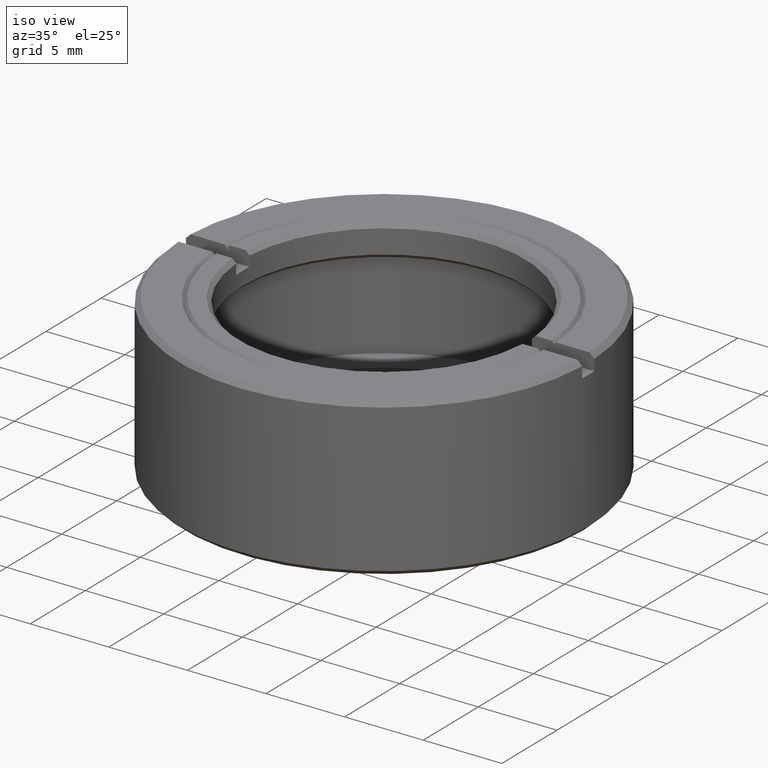
[diagram: clean part render]
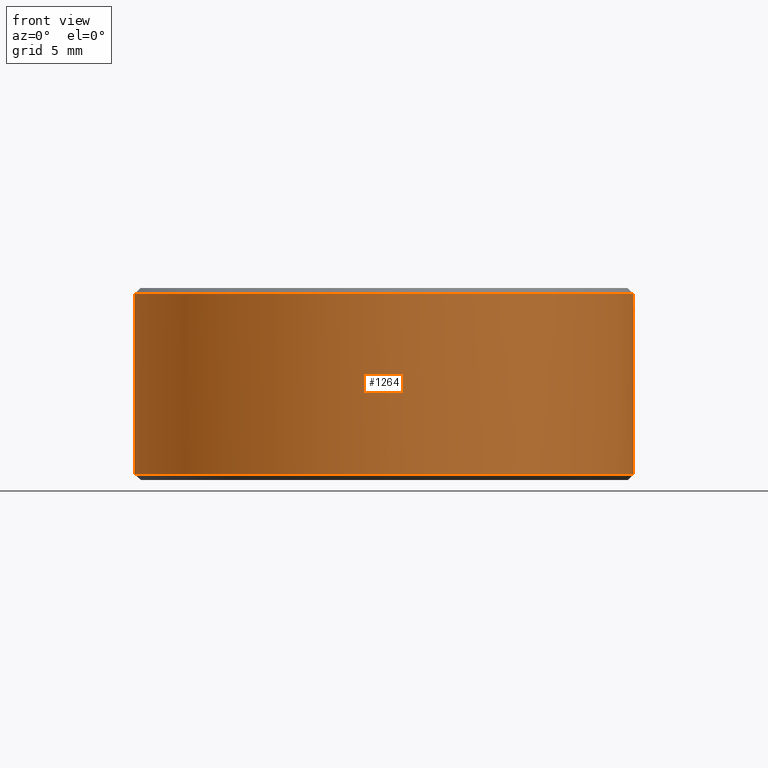
[diagram: tour spotlight — one face highlighted and labeled with its STEP entity id]
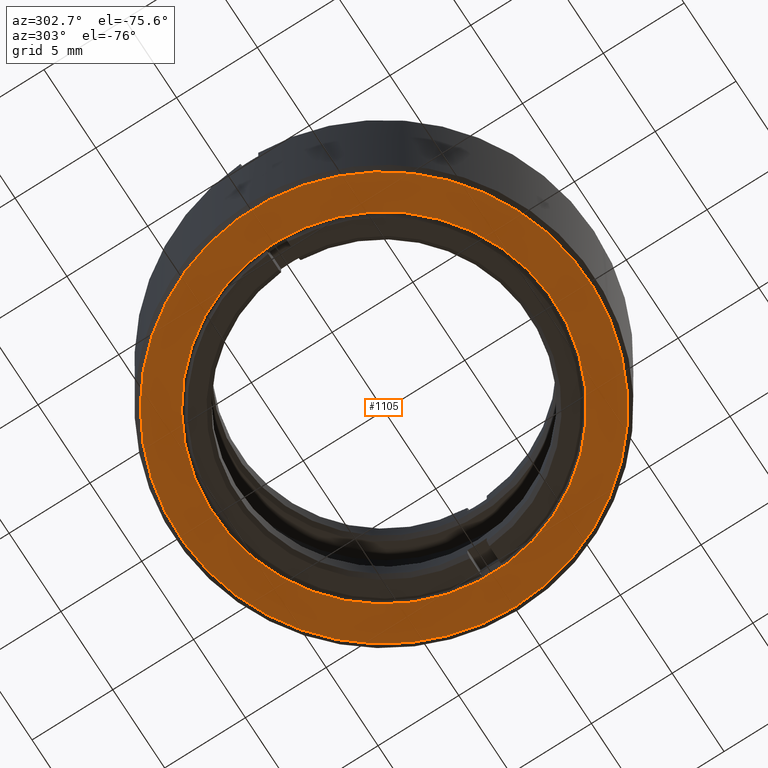
[diagram: tour spotlight — one face highlighted and labeled with its STEP entity id]
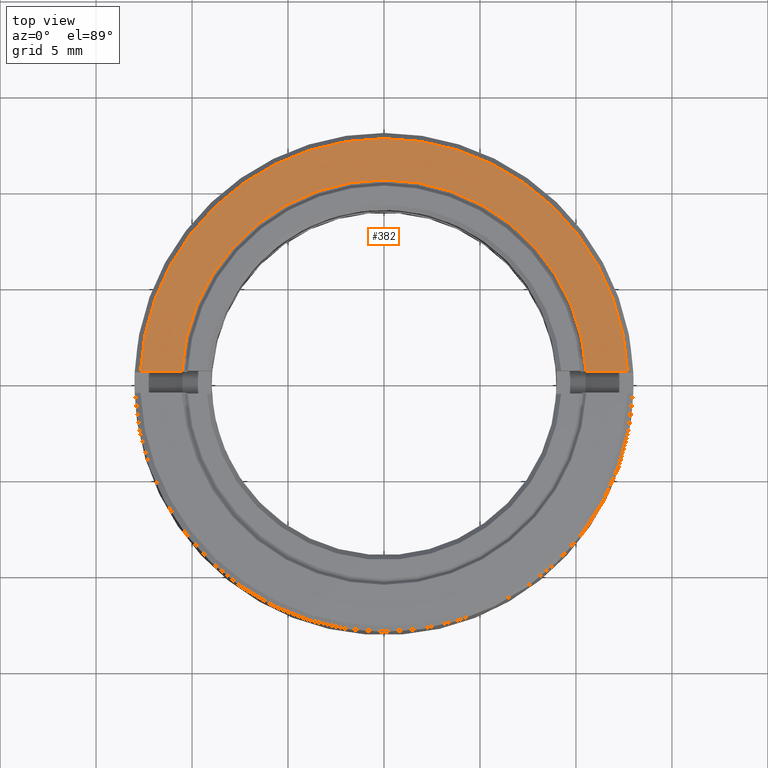
[diagram: tour spotlight — one face highlighted and labeled with its STEP entity id]
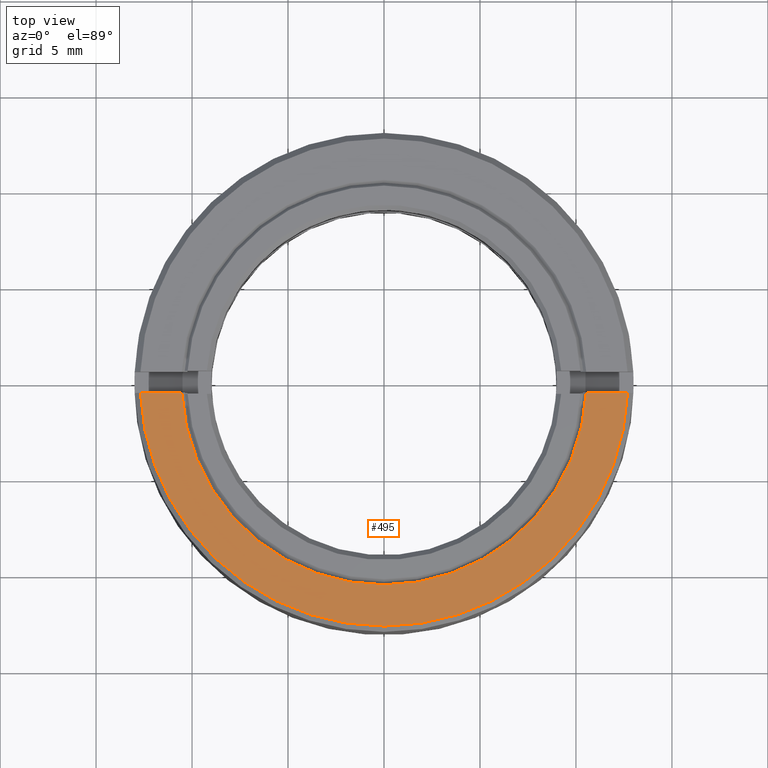
[diagram: tour spotlight — one face highlighted and labeled with its STEP entity id]
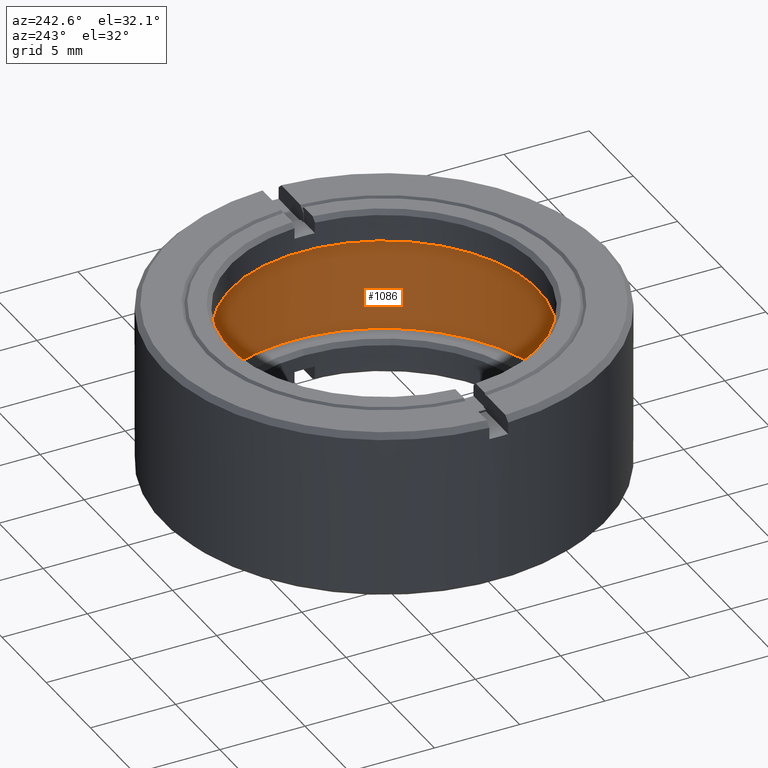
[diagram: tour spotlight — one face highlighted and labeled with its STEP entity id]
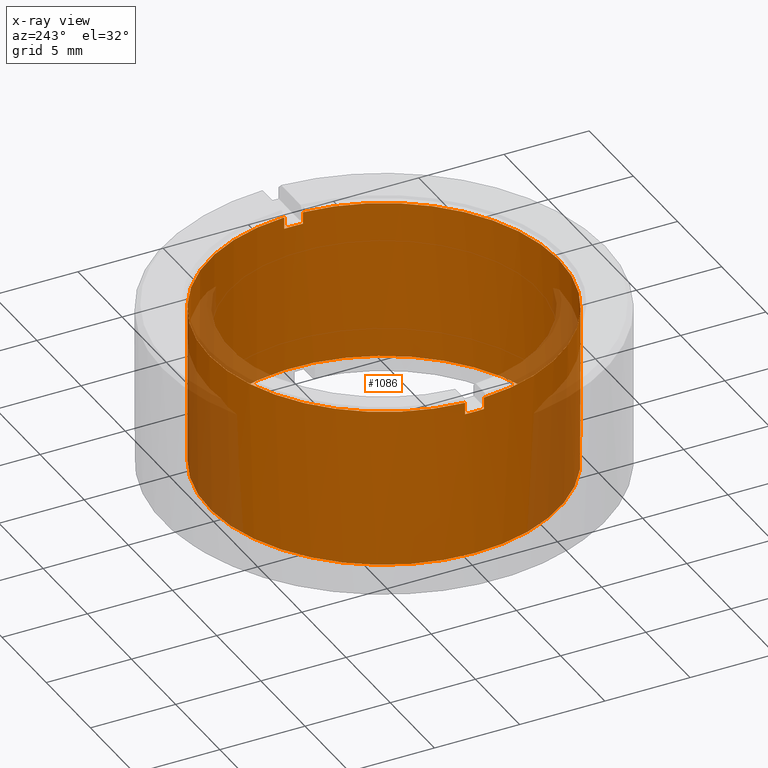
[diagram: x-ray of the same camera — body ghosted, this tour face saturated]
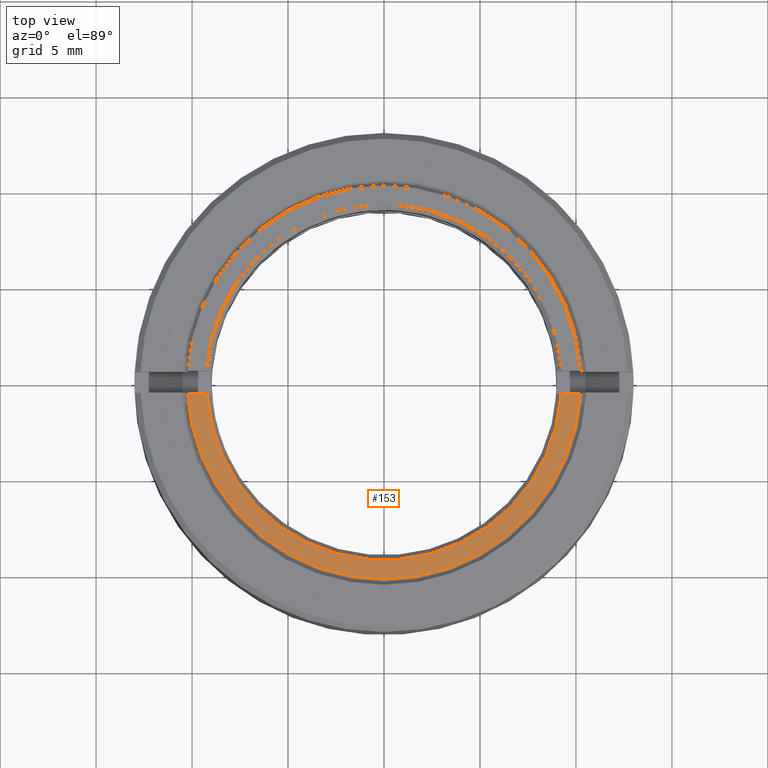
[diagram: tour spotlight — one face highlighted and labeled with its STEP entity id]
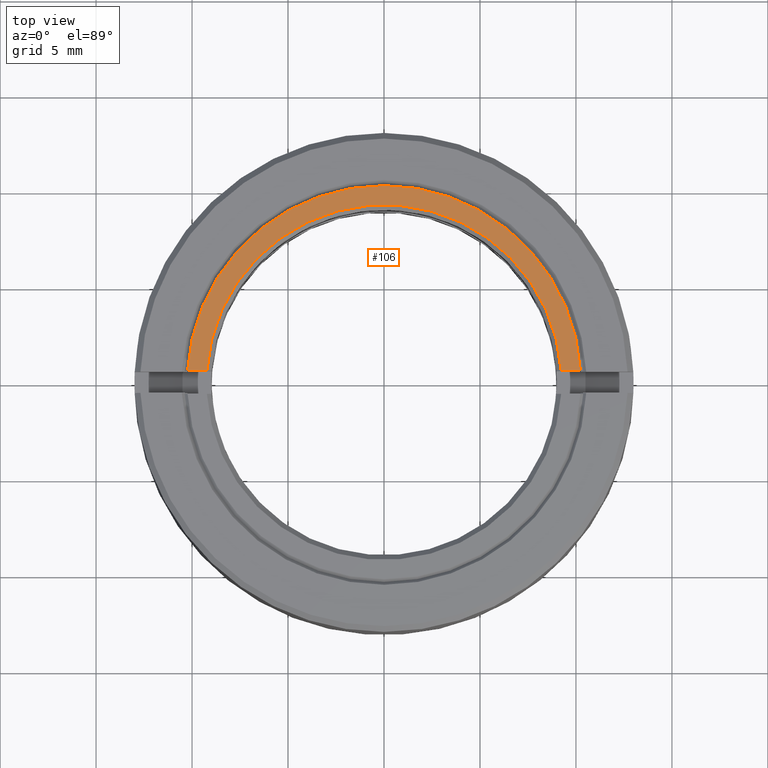
[diagram: tour spotlight — one face highlighted and labeled with its STEP entity id]
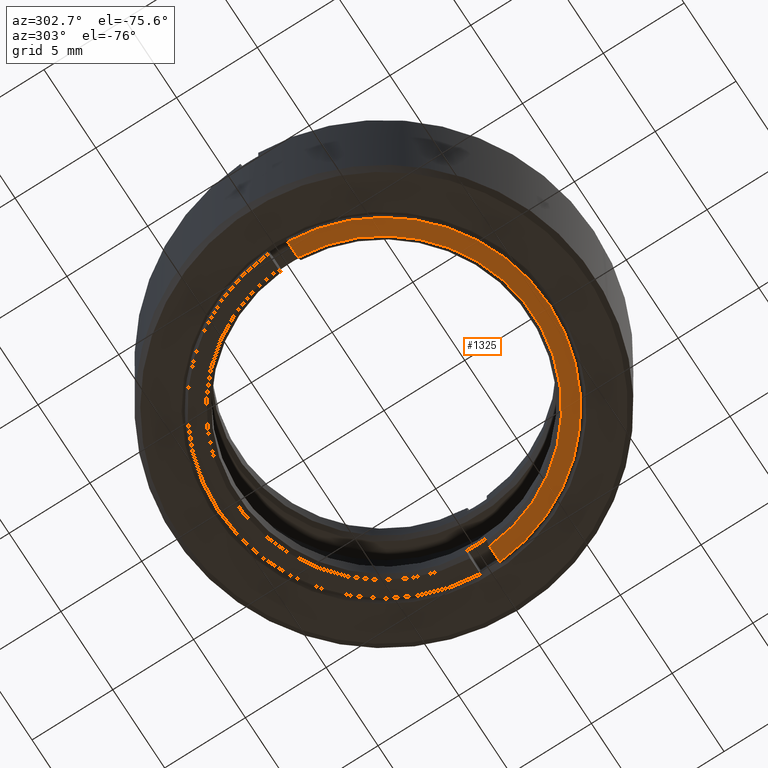
[diagram: tour spotlight — one face highlighted and labeled with its STEP entity id]
A machine part: a face-by-face anatomy tour. The part has 51 B-rep faces; the first image is the clean iso view, then the 8 largest visible faces are spotlighted one at a time (largest first), each with its STEP entity span.

Face 1 — front view, entity #1264. In plain terms, the highlighted cylindrical surface (bore or boss wall) has radius 13 mm, axis along (-0, -0, -1).
Definition (entity closure, byte-faithful):
#47 = EDGE_CURVE ( 'NONE', #1429, #1429, #965, .T. ) ;
#60 = VERTEX_POINT ( 'NONE', #861 ) ;
#65 = AXIS2_PLACEMENT_3D ( 'NONE', #281, #1530, #1143 ) ;
#82 = VERTEX_POINT ( 'NONE', #359 ) ;
#162 = VERTEX_POINT ( 'NONE', #1006 ) ;
#169 = CARTESIAN_POINT ( 'NONE',  ( 12.98836017363239037, 0.5500000000000000444, 4.000000000000000000 ) ) ;
#180 = VERTEX_POINT ( 'NONE', #169 ) ;
#231 = DIRECTION ( 'NONE',  ( 0.000000000000000000, 0.000000000000000000, 1.000000000000000000 ) ) ;
#270 = VECTOR ( 'NONE', #1326, 1000.000000000000000 ) ;
#275 = ORIENTED_EDGE ( 'NONE', *, *, #1002, .T. ) ;
#281 = CARTESIAN_POINT ( 'NONE',  ( 0.000000000000000000, 0.000000000000000000, 4.699999999999987743 ) ) ;
#320 = CARTESIAN_POINT ( 'NONE',  ( -12.98836017363239037, 0.5500000000000000444, 4.000000000000000000 ) ) ;
#346 = LINE ( 'NONE', #320, #1147 ) ;
#359 = CARTESIAN_POINT ( 'NONE',  ( -12.98836017363239037, 0.5500000000000000444, 4.699999999999988631 ) ) ;
#369 = CARTESIAN_POINT ( 'NONE',  ( 12.98836017363239037, -0.5500000000000000444, 4.000000000000000000 ) ) ;
#404 = AXIS2_PLACEMENT_3D ( 'NONE', #1527, #657, #411 ) ;
#411 = DIRECTION ( 'NONE',  ( -1.000000000000000000, 0.000000000000000000, 0.000000000000000000 ) ) ;
#447 = EDGE_CURVE ( 'NONE', #60, #162, #528, .T. ) ;
#459 = VECTOR ( 'NONE', #1548, 1000.000000000000000 ) ;
#466 = VERTEX_POINT ( 'NONE', #600 ) ;
#477 = AXIS2_PLACEMENT_3D ( 'NONE', #497, #231, #827 ) ;
#497 = CARTESIAN_POINT ( 'NONE',  ( 0.000000000000000000, 0.000000000000000000, -4.700000000000000178 ) ) ;
#528 = CIRCLE ( 'NONE', #1144, 13.00000000000000355 ) ;
#535 = VECTOR ( 'NONE', #1298, 1000.000000000000000 ) ;
#549 = CARTESIAN_POINT ( 'NONE',  ( 0.000000000000000000, 0.000000000000000000, 4.000000000000000000 ) ) ;
#552 = ORIENTED_EDGE ( 'NONE', *, *, #1294, .T. ) ;
#583 = LINE ( 'NONE', #1071, #270 ) ;
#600 = CARTESIAN_POINT ( 'NONE',  ( -12.98836017363239037, -0.5500000000000000444, 4.699999999999988631 ) ) ;
#609 = CIRCLE ( 'NONE', #404, 13.00000000000000355 ) ;
#623 = ORIENTED_EDGE ( 'NONE', *, *, #1252, .F. ) ;
#657 = DIRECTION ( 'NONE',  ( -0.000000000000000000, -0.000000000000000000, -1.000000000000000000 ) ) ;
#687 = VERTEX_POINT ( 'NONE', #1083 ) ;
#719 = ORIENTED_EDGE ( 'NONE', *, *, #1202, .T. ) ;
#739 = EDGE_LOOP ( 'NONE', ( #1611 ) ) ;
#786 = CIRCLE ( 'NONE', #1201, 13.00000000000000355 ) ;
#826 = CARTESIAN_POINT ( 'NONE',  ( 0.000000000000000000, 0.000000000000000000, 4.000000000000000000 ) ) ;
#827 = DIRECTION ( 'NONE',  ( -1.000000000000000000, 0.000000000000000000, 0.000000000000000000 ) ) ;
#847 = VERTEX_POINT ( 'NONE', #369 ) ;
#861 = CARTESIAN_POINT ( 'NONE',  ( -12.98836017363239037, 0.5500000000000000444, 4.000000000000000000 ) ) ;
#926 = DIRECTION ( 'NONE',  ( -0.000000000000000000, -0.000000000000000000, -1.000000000000000000 ) ) ;
#930 = CARTESIAN_POINT ( 'NONE',  ( 12.98836017363239037, 0.5500000000000000444, 4.000000000000000000 ) ) ;
#933 = FACE_OUTER_BOUND ( 'NONE', #1368, .T. ) ;
#941 = CIRCLE ( 'NONE', #65, 13.00000000000000355 ) ;
#959 = DIRECTION ( 'NONE',  ( -1.000000000000000000, 0.000000000000000000, 0.000000000000000000 ) ) ;
#965 = CIRCLE ( 'NONE', #477, 13.00000000000000355 ) ;
#1002 = EDGE_CURVE ( 'NONE', #82, #1195, #609, .T. ) ;
#1006 = CARTESIAN_POINT ( 'NONE',  ( -12.98836017363239037, -0.5500000000000000444, 4.000000000000000000 ) ) ;
#1035 = CARTESIAN_POINT ( 'NONE',  ( 12.98836017363239037, 0.5500000000000000444, 4.699999999999988631 ) ) ;
#1050 = LINE ( 'NONE', #1551, #459 ) ;
#1065 = CARTESIAN_POINT ( 'NONE',  ( -13.00000000000000355, 0.000000000000000000, -4.700000000000000178 ) ) ;
#1071 = CARTESIAN_POINT ( 'NONE',  ( -12.98836017363239037, -0.5500000000000000444, 4.000000000000000000 ) ) ;
#1083 = CARTESIAN_POINT ( 'NONE',  ( 12.98836017363239037, -0.5500000000000000444, 4.699999999999988631 ) ) ;
#1136 = EDGE_CURVE ( 'NONE', #847, #687, #1050, .T. ) ;
#1143 = DIRECTION ( 'NONE',  ( -1.000000000000000000, 0.000000000000000000, 0.000000000000000000 ) ) ;
#1144 = AXIS2_PLACEMENT_3D ( 'NONE', #826, #1358, #1349 ) ;
#1147 = VECTOR ( 'NONE', #1442, 1000.000000000000000 ) ;
#1176 = DIRECTION ( 'NONE',  ( 0.000000000000000000, 0.000000000000000000, 1.000000000000000000 ) ) ;
#1188 = LINE ( 'NONE', #930, #535 ) ;
#1195 = VERTEX_POINT ( 'NONE', #1035 ) ;
#1201 = AXIS2_PLACEMENT_3D ( 'NONE', #549, #1176, #1336 ) ;
#1202 = EDGE_CURVE ( 'NONE', #687, #466, #941, .T. ) ;
#1204 = FACE_OUTER_BOUND ( 'NONE', #739, .T. ) ;
#1252 = EDGE_CURVE ( 'NONE', #847, #180, #786, .T. ) ;
#1264 = ADVANCED_FACE ( 'NONE', ( #1204, #933 ), #1564, .T. ) ;
#1294 = EDGE_CURVE ( 'NONE', #60, #82, #346, .T. ) ;
#1298 = DIRECTION ( 'NONE',  ( -0.000000000000000000, 0.000000000000000000, -1.000000000000000000 ) ) ;
#1326 = DIRECTION ( 'NONE',  ( 0.000000000000000000, -0.000000000000000000, -1.000000000000000000 ) ) ;
#1336 = DIRECTION ( 'NONE',  ( -1.000000000000000000, 1.687538997430237941E-14, 0.000000000000000000 ) ) ;
#1349 = DIRECTION ( 'NONE',  ( -1.000000000000000000, 0.000000000000000000, 0.000000000000000000 ) ) ;
#1350 = EDGE_CURVE ( 'NONE', #466, #162, #583, .T. ) ;
#1358 = DIRECTION ( 'NONE',  ( 0.000000000000000000, 0.000000000000000000, 1.000000000000000000 ) ) ;
#1368 = EDGE_LOOP ( 'NONE', ( #275, #1409, #623, #1462, #719, #1424, #1541, #552 ) ) ;
#1409 = ORIENTED_EDGE ( 'NONE', *, *, #1553, .T. ) ;
#1424 = ORIENTED_EDGE ( 'NONE', *, *, #1350, .T. ) ;
#1429 = VERTEX_POINT ( 'NONE', #1065 ) ;
#1442 = DIRECTION ( 'NONE',  ( 0.000000000000000000, -0.000000000000000000, 1.000000000000000000 ) ) ;
#1462 = ORIENTED_EDGE ( 'NONE', *, *, #1136, .T. ) ;
#1468 = AXIS2_PLACEMENT_3D ( 'NONE', #1589, #926, #959 ) ;
#1527 = CARTESIAN_POINT ( 'NONE',  ( 0.000000000000000000, 0.000000000000000000, 4.699999999999987743 ) ) ;
#1530 = DIRECTION ( 'NONE',  ( -0.000000000000000000, -0.000000000000000000, -1.000000000000000000 ) ) ;
#1541 = ORIENTED_EDGE ( 'NONE', *, *, #447, .F. ) ;
#1548 = DIRECTION ( 'NONE',  ( -0.000000000000000000, 0.000000000000000000, 1.000000000000000000 ) ) ;
#1551 = CARTESIAN_POINT ( 'NONE',  ( 12.98836017363239037, -0.5500000000000000444, 4.000000000000000000 ) ) ;
#1553 = EDGE_CURVE ( 'NONE', #1195, #180, #1188, .T. ) ;
#1564 = CYLINDRICAL_SURFACE ( 'NONE', #1468, 13.00000000000000355 ) ;
#1589 = CARTESIAN_POINT ( 'NONE',  ( 0.000000000000000000, 0.000000000000000000, 5.000000000000000000 ) ) ;
#1611 = ORIENTED_EDGE ( 'NONE', *, *, #47, .T. ) ;

Face 2 — auxiliary view, entity #1105. In plain terms, the highlighted planar face has unit normal (0, 0, 1).
Definition (entity closure, byte-faithful):
#66 = EDGE_LOOP ( 'NONE', ( #472 ) ) ;
#84 = CARTESIAN_POINT ( 'NONE',  ( 0.000000000000000000, 0.000000000000000000, -4.999999999999998224 ) ) ;
#226 = CARTESIAN_POINT ( 'NONE',  ( -10.55000000000000604, 0.000000000000000000, -4.999999999999998224 ) ) ;
#325 = CIRCLE ( 'NONE', #356, 10.55000000000000604 ) ;
#356 = AXIS2_PLACEMENT_3D ( 'NONE', #84, #578, #1170 ) ;
#366 = VERTEX_POINT ( 'NONE', #1453 ) ;
#435 = FACE_BOUND ( 'NONE', #66, .T. ) ;
#444 = PLANE ( 'NONE',  #1018 ) ;
#472 = ORIENTED_EDGE ( 'NONE', *, *, #1584, .F. ) ;
#483 = CIRCLE ( 'NONE', #1386, 12.69999999999999929 ) ;
#578 = DIRECTION ( 'NONE',  ( 0.000000000000000000, 0.000000000000000000, -1.000000000000000000 ) ) ;
#594 = VERTEX_POINT ( 'NONE', #226 ) ;
#650 = DIRECTION ( 'NONE',  ( 1.000000000000000000, 0.000000000000000000, 0.000000000000000000 ) ) ;
#704 = ORIENTED_EDGE ( 'NONE', *, *, #1404, .F. ) ;
#750 = CARTESIAN_POINT ( 'NONE',  ( 0.000000000000000000, 0.000000000000000000, -5.000000000000000888 ) ) ;
#947 = FACE_OUTER_BOUND ( 'NONE', #1082, .T. ) ;
#1018 = AXIS2_PLACEMENT_3D ( 'NONE', #1179, #1542, #1446 ) ;
#1082 = EDGE_LOOP ( 'NONE', ( #704 ) ) ;
#1105 = ADVANCED_FACE ( 'NONE', ( #947, #435 ), #444, .F. ) ;
#1170 = DIRECTION ( 'NONE',  ( -1.000000000000000000, 0.000000000000000000, 0.000000000000000000 ) ) ;
#1179 = CARTESIAN_POINT ( 'NONE',  ( 0.000000000000000000, 0.000000000000000000, -5.000000000000000000 ) ) ;
#1278 = DIRECTION ( 'NONE',  ( 0.000000000000000000, -0.000000000000000000, 1.000000000000000000 ) ) ;
#1386 = AXIS2_PLACEMENT_3D ( 'NONE', #750, #1278, #650 ) ;
#1404 = EDGE_CURVE ( 'NONE', #366, #366, #483, .T. ) ;
#1446 = DIRECTION ( 'NONE',  ( 1.000000000000000000, 0.000000000000000000, -0.000000000000000000 ) ) ;
#1453 = CARTESIAN_POINT ( 'NONE',  ( 12.69999999999999929, 0.000000000000000000, -5.000000000000000888 ) ) ;
#1542 = DIRECTION ( 'NONE',  ( 0.000000000000000000, 0.000000000000000000, 1.000000000000000000 ) ) ;
#1584 = EDGE_CURVE ( 'NONE', #594, #594, #325, .T. ) ;

Face 3 — top view, entity #382. In plain terms, the highlighted planar face has unit normal (0, 0, 1).
Definition (entity closure, byte-faithful):
#10 = AXIS2_PLACEMENT_3D ( 'NONE', #341, #1576, #837 ) ;
#76 = DIRECTION ( 'NONE',  ( 0.000000000000000000, 0.000000000000000000, -1.000000000000000000 ) ) ;
#103 = EDGE_LOOP ( 'NONE', ( #972, #484, #1507, #452 ) ) ;
#135 = CARTESIAN_POINT ( 'NONE',  ( -12.68808496188450441, 0.5500000000000000444, 5.000000000000001776 ) ) ;
#137 = VERTEX_POINT ( 'NONE', #135 ) ;
#172 = DIRECTION ( 'NONE',  ( -1.000000000000000000, 0.000000000000000000, 0.000000000000000000 ) ) ;
#196 = CARTESIAN_POINT ( 'NONE',  ( 10.53565375285273831, 0.5500000000000000444, 5.000000000000000888 ) ) ;
#292 = EDGE_CURVE ( 'NONE', #137, #1526, #1321, .T. ) ;
#341 = CARTESIAN_POINT ( 'NONE',  ( 0.000000000000000000, 0.000000000000000000, 5.000000000000000000 ) ) ;
#350 = VECTOR ( 'NONE', #425, 1000.000000000000000 ) ;
#382 = ADVANCED_FACE ( 'NONE', ( #952 ), #1583, .T. ) ;
#418 = CARTESIAN_POINT ( 'NONE',  ( 0.000000000000000000, 0.5500000000000000444, 5.000000000000000000 ) ) ;
#425 = DIRECTION ( 'NONE',  ( 1.000000000000000000, 0.000000000000000000, -0.000000000000000000 ) ) ;
#440 = CARTESIAN_POINT ( 'NONE',  ( 0.000000000000000000, 0.000000000000000000, 5.000000000000002665 ) ) ;
#452 = ORIENTED_EDGE ( 'NONE', *, *, #1586, .F. ) ;
#484 = ORIENTED_EDGE ( 'NONE', *, *, #1157, .T. ) ;
#645 = DIRECTION ( 'NONE',  ( 1.000000000000000000, 0.000000000000000000, 0.000000000000000000 ) ) ;
#833 = VECTOR ( 'NONE', #945, 1000.000000000000000 ) ;
#837 = DIRECTION ( 'NONE',  ( 1.000000000000000000, 0.000000000000000000, -0.000000000000000000 ) ) ;
#912 = LINE ( 'NONE', #418, #350 ) ;
#919 = DIRECTION ( 'NONE',  ( -0.000000000000000000, 0.000000000000000000, -1.000000000000000000 ) ) ;
#932 = EDGE_CURVE ( 'NONE', #1103, #1026, #912, .T. ) ;
#945 = DIRECTION ( 'NONE',  ( 1.000000000000000000, 0.000000000000000000, -0.000000000000000000 ) ) ;
#952 = FACE_OUTER_BOUND ( 'NONE', #103, .T. ) ;
#972 = ORIENTED_EDGE ( 'NONE', *, *, #292, .T. ) ;
#1026 = VERTEX_POINT ( 'NONE', #1276 ) ;
#1061 = CARTESIAN_POINT ( 'NONE',  ( 0.000000000000000000, 0.5500000000000000444, 5.000000000000000000 ) ) ;
#1103 = VERTEX_POINT ( 'NONE', #196 ) ;
#1157 = EDGE_CURVE ( 'NONE', #1526, #1103, #1599, .T. ) ;
#1258 = CIRCLE ( 'NONE', #1573, 12.69999999999998863 ) ;
#1276 = CARTESIAN_POINT ( 'NONE',  ( 12.68808496188450441, 0.5500000000000000444, 5.000000000000002665 ) ) ;
#1321 = LINE ( 'NONE', #1061, #833 ) ;
#1392 = CARTESIAN_POINT ( 'NONE',  ( -10.53565375285274008, 0.5500000000000000444, 5.000000000000002665 ) ) ;
#1413 = AXIS2_PLACEMENT_3D ( 'NONE', #440, #919, #645 ) ;
#1417 = CARTESIAN_POINT ( 'NONE',  ( 0.000000000000000000, 0.000000000000000000, 5.000000000000001776 ) ) ;
#1507 = ORIENTED_EDGE ( 'NONE', *, *, #932, .T. ) ;
#1526 = VERTEX_POINT ( 'NONE', #1392 ) ;
#1573 = AXIS2_PLACEMENT_3D ( 'NONE', #1417, #76, #172 ) ;
#1576 = DIRECTION ( 'NONE',  ( 0.000000000000000000, 0.000000000000000000, 1.000000000000000000 ) ) ;
#1583 = PLANE ( 'NONE',  #10 ) ;
#1586 = EDGE_CURVE ( 'NONE', #137, #1026, #1258, .T. ) ;
#1599 = CIRCLE ( 'NONE', #1413, 10.55000000000000071 ) ;

Face 4 — top view, entity #495. In plain terms, the highlighted planar face has unit normal (0, 0, 1).
Definition (entity closure, byte-faithful):
#42 = CARTESIAN_POINT ( 'NONE',  ( 0.000000000000000000, -0.5500000000000000444, 5.000000000000000000 ) ) ;
#101 = ORIENTED_EDGE ( 'NONE', *, *, #771, .T. ) ;
#146 = EDGE_CURVE ( 'NONE', #921, #694, #1168, .T. ) ;
#203 = EDGE_CURVE ( 'NONE', #694, #391, #884, .T. ) ;
#276 = DIRECTION ( 'NONE',  ( 0.000000000000000000, 0.000000000000000000, -1.000000000000000000 ) ) ;
#330 = ORIENTED_EDGE ( 'NONE', *, *, #146, .T. ) ;
#381 = DIRECTION ( 'NONE',  ( -0.000000000000000000, 0.000000000000000000, -1.000000000000000000 ) ) ;
#391 = VERTEX_POINT ( 'NONE', #845 ) ;
#400 = CARTESIAN_POINT ( 'NONE',  ( 0.000000000000000000, 0.000000000000000000, 5.000000000000001776 ) ) ;
#465 = FACE_OUTER_BOUND ( 'NONE', #887, .T. ) ;
#489 = PLANE ( 'NONE',  #558 ) ;
#495 = ADVANCED_FACE ( 'NONE', ( #465 ), #489, .T. ) ;
#531 = VECTOR ( 'NONE', #867, 1000.000000000000000 ) ;
#558 = AXIS2_PLACEMENT_3D ( 'NONE', #975, #1477, #925 ) ;
#614 = LINE ( 'NONE', #1216, #531 ) ;
#654 = DIRECTION ( 'NONE',  ( 1.000000000000000000, 0.000000000000000000, 0.000000000000000000 ) ) ;
#694 = VERTEX_POINT ( 'NONE', #1588 ) ;
#771 = EDGE_CURVE ( 'NONE', #931, #921, #614, .T. ) ;
#845 = CARTESIAN_POINT ( 'NONE',  ( -12.68808496188450441, -0.5500000000000000444, 5.000000000000002665 ) ) ;
#862 = AXIS2_PLACEMENT_3D ( 'NONE', #400, #276, #1268 ) ;
#867 = DIRECTION ( 'NONE',  ( -1.000000000000000000, -0.000000000000000000, 0.000000000000000000 ) ) ;
#884 = LINE ( 'NONE', #42, #1567 ) ;
#887 = EDGE_LOOP ( 'NONE', ( #101, #330, #1596, #1011 ) ) ;
#896 = CARTESIAN_POINT ( 'NONE',  ( 0.000000000000000000, 0.000000000000000000, 5.000000000000000888 ) ) ;
#921 = VERTEX_POINT ( 'NONE', #1041 ) ;
#925 = DIRECTION ( 'NONE',  ( 1.000000000000000000, 0.000000000000000000, -0.000000000000000000 ) ) ;
#931 = VERTEX_POINT ( 'NONE', #1260 ) ;
#974 = EDGE_CURVE ( 'NONE', #931, #391, #1094, .T. ) ;
#975 = CARTESIAN_POINT ( 'NONE',  ( 0.000000000000000000, 0.000000000000000000, 5.000000000000000000 ) ) ;
#1011 = ORIENTED_EDGE ( 'NONE', *, *, #974, .F. ) ;
#1041 = CARTESIAN_POINT ( 'NONE',  ( 10.53565375285273831, -0.5500000000000000444, 5.000000000000000888 ) ) ;
#1094 = CIRCLE ( 'NONE', #862, 12.69999999999998863 ) ;
#1168 = CIRCLE ( 'NONE', #1225, 10.54999999999999893 ) ;
#1216 = CARTESIAN_POINT ( 'NONE',  ( 0.000000000000000000, -0.5500000000000000444, 5.000000000000000000 ) ) ;
#1225 = AXIS2_PLACEMENT_3D ( 'NONE', #896, #381, #654 ) ;
#1260 = CARTESIAN_POINT ( 'NONE',  ( 12.68808496188450441, -0.5500000000000000444, 5.000000000000001776 ) ) ;
#1268 = DIRECTION ( 'NONE',  ( -1.000000000000000000, 0.000000000000000000, 0.000000000000000000 ) ) ;
#1477 = DIRECTION ( 'NONE',  ( 0.000000000000000000, 0.000000000000000000, 1.000000000000000000 ) ) ;
#1525 = DIRECTION ( 'NONE',  ( -1.000000000000000000, -0.000000000000000000, 0.000000000000000000 ) ) ;
#1567 = VECTOR ( 'NONE', #1525, 1000.000000000000000 ) ;
#1588 = CARTESIAN_POINT ( 'NONE',  ( -10.53565375285273831, -0.5500000000000000444, 5.000000000000000888 ) ) ;
#1596 = ORIENTED_EDGE ( 'NONE', *, *, #203, .T. ) ;

Face 5 — auxiliary view, entity #1086. An x-ray twin of the same camera follows (body ghosted, this face saturated) — the face is partly hidden behind the body. In plain terms, the highlighted cylindrical surface (bore or boss wall) has radius 10.25 mm, axis along (-0, -0, 1).
Definition (entity closure, byte-faithful):
#8 = DIRECTION ( 'NONE',  ( -0.000000000000000000, -0.000000000000000000, -1.000000000000000000 ) ) ;
#21 = DIRECTION ( 'NONE',  ( 0.000000000000000000, 0.000000000000000000, -1.000000000000000000 ) ) ;
#26 = VERTEX_POINT ( 'NONE', #1085 ) ;
#40 = AXIS2_PLACEMENT_3D ( 'NONE', #1348, #8, #486 ) ;
#41 = LINE ( 'NONE', #1024, #120 ) ;
#46 = CARTESIAN_POINT ( 'NONE',  ( 0.000000000000000000, 0.000000000000000000, 4.000000000000000888 ) ) ;
#59 = DIRECTION ( 'NONE',  ( 0.000000000000000000, 0.000000000000000000, 1.000000000000000000 ) ) ;
#83 = FACE_OUTER_BOUND ( 'NONE', #1223, .T. ) ;
#100 = CARTESIAN_POINT ( 'NONE',  ( 10.23523326553919155, 0.5500000000000000444, 4.000000000000000000 ) ) ;
#102 = VERTEX_POINT ( 'NONE', #1397 ) ;
#120 = VECTOR ( 'NONE', #430, 1000.000000000000000 ) ;
#145 = CIRCLE ( 'NONE', #1175, 10.25000000000000000 ) ;
#199 = CARTESIAN_POINT ( 'NONE',  ( 0.000000000000000000, 0.000000000000000000, 4.700000000000003730 ) ) ;
#217 = CIRCLE ( 'NONE', #1068, 10.25000000000000000 ) ;
#267 = CIRCLE ( 'NONE', #1067, 10.25000000000000000 ) ;
#304 = ORIENTED_EDGE ( 'NONE', *, *, #752, .T. ) ;
#316 = VERTEX_POINT ( 'NONE', #703 ) ;
#327 = DIRECTION ( 'NONE',  ( 1.000000000000000000, 0.000000000000000000, 0.000000000000000000 ) ) ;
#429 = CIRCLE ( 'NONE', #991, 10.25000000000000000 ) ;
#430 = DIRECTION ( 'NONE',  ( 0.000000000000000000, -0.000000000000000000, -1.000000000000000000 ) ) ;
#450 = CYLINDRICAL_SURFACE ( 'NONE', #890, 10.25000000000000000 ) ;
#453 = DIRECTION ( 'NONE',  ( 0.000000000000000000, 0.000000000000000000, -1.000000000000000000 ) ) ;
#462 = DIRECTION ( 'NONE',  ( -0.000000000000000000, -0.000000000000000000, 1.000000000000000000 ) ) ;
#485 = VERTEX_POINT ( 'NONE', #100 ) ;
#486 = DIRECTION ( 'NONE',  ( -1.000000000000000000, 0.000000000000000000, 0.000000000000000000 ) ) ;
#493 = CARTESIAN_POINT ( 'NONE',  ( -10.23523326553918977, -0.5500000000000000444, 4.000000000000000000 ) ) ;
#500 = EDGE_CURVE ( 'NONE', #1279, #564, #267, .T. ) ;
#539 = ORIENTED_EDGE ( 'NONE', *, *, #1334, .T. ) ;
#564 = VERTEX_POINT ( 'NONE', #1425 ) ;
#579 = EDGE_LOOP ( 'NONE', ( #1182, #1259, #1304, #539, #1098, #1431, #855, #1039 ) ) ;
#582 = EDGE_CURVE ( 'NONE', #485, #1519, #988, .T. ) ;
#599 = LINE ( 'NONE', #1218, #916 ) ;
#607 = VECTOR ( 'NONE', #1492, 1000.000000000000000 ) ;
#703 = CARTESIAN_POINT ( 'NONE',  ( -10.25000000000000000, 0.000000000000000000, -4.699999999999989519 ) ) ;
#724 = EDGE_CURVE ( 'NONE', #736, #1346, #217, .T. ) ;
#736 = VERTEX_POINT ( 'NONE', #1192 ) ;
#742 = LINE ( 'NONE', #493, #989 ) ;
#752 = EDGE_CURVE ( 'NONE', #316, #316, #1254, .T. ) ;
#801 = CARTESIAN_POINT ( 'NONE',  ( -10.23523326553918977, -0.5500000000000000444, 4.700000000000004619 ) ) ;
#834 = DIRECTION ( 'NONE',  ( 1.000000000000000000, 0.000000000000000000, 8.462065736472229849E-17 ) ) ;
#844 = EDGE_CURVE ( 'NONE', #736, #1279, #742, .T. ) ;
#855 = ORIENTED_EDGE ( 'NONE', *, *, #844, .T. ) ;
#874 = CARTESIAN_POINT ( 'NONE',  ( 10.23523326553919155, 0.5500000000000000444, 4.000000000000000000 ) ) ;
#890 = AXIS2_PLACEMENT_3D ( 'NONE', #1297, #462, #327 ) ;
#916 = VECTOR ( 'NONE', #1231, 1000.000000000000000 ) ;
#980 = DIRECTION ( 'NONE',  ( -0.000000000000000000, 0.000000000000000000, 1.000000000000000000 ) ) ;
#988 = LINE ( 'NONE', #874, #607 ) ;
#989 = VECTOR ( 'NONE', #980, 1000.000000000000000 ) ;
#991 = AXIS2_PLACEMENT_3D ( 'NONE', #199, #1184, #834 ) ;
#1024 = CARTESIAN_POINT ( 'NONE',  ( 10.23523326553919155, -0.5500000000000000444, 4.000000000000000000 ) ) ;
#1039 = ORIENTED_EDGE ( 'NONE', *, *, #500, .T. ) ;
#1067 = AXIS2_PLACEMENT_3D ( 'NONE', #1244, #59, #1383 ) ;
#1068 = AXIS2_PLACEMENT_3D ( 'NONE', #1432, #453, #1310 ) ;
#1085 = CARTESIAN_POINT ( 'NONE',  ( 10.23523326553919155, -0.5500000000000000444, 4.000000000000000000 ) ) ;
#1086 = ADVANCED_FACE ( 'NONE', ( #83, #1570 ), #450, .F. ) ;
#1098 = ORIENTED_EDGE ( 'NONE', *, *, #1366, .T. ) ;
#1112 = DIRECTION ( 'NONE',  ( 1.000000000000000000, 0.000000000000000000, 0.000000000000000000 ) ) ;
#1175 = AXIS2_PLACEMENT_3D ( 'NONE', #46, #21, #1112 ) ;
#1182 = ORIENTED_EDGE ( 'NONE', *, *, #1210, .T. ) ;
#1184 = DIRECTION ( 'NONE',  ( 0.000000000000000000, 0.000000000000000000, 1.000000000000000000 ) ) ;
#1192 = CARTESIAN_POINT ( 'NONE',  ( -10.23523326553918977, -0.5500000000000000444, 4.000000000000000000 ) ) ;
#1193 = CARTESIAN_POINT ( 'NONE',  ( -10.23523326553918977, 0.5500000000000000444, 4.000000000000000888 ) ) ;
#1210 = EDGE_CURVE ( 'NONE', #564, #26, #41, .T. ) ;
#1218 = CARTESIAN_POINT ( 'NONE',  ( -10.23523326553918977, 0.5500000000000000444, 4.000000000000000000 ) ) ;
#1223 = EDGE_LOOP ( 'NONE', ( #304 ) ) ;
#1231 = DIRECTION ( 'NONE',  ( -0.000000000000000000, 0.000000000000000000, -1.000000000000000000 ) ) ;
#1244 = CARTESIAN_POINT ( 'NONE',  ( 0.000000000000000000, 0.000000000000000000, 4.700000000000003730 ) ) ;
#1254 = CIRCLE ( 'NONE', #40, 10.25000000000000000 ) ;
#1259 = ORIENTED_EDGE ( 'NONE', *, *, #1433, .F. ) ;
#1279 = VERTEX_POINT ( 'NONE', #801 ) ;
#1297 = CARTESIAN_POINT ( 'NONE',  ( 0.000000000000000000, 0.000000000000000000, -5.000000000000000000 ) ) ;
#1304 = ORIENTED_EDGE ( 'NONE', *, *, #582, .T. ) ;
#1310 = DIRECTION ( 'NONE',  ( 1.000000000000000000, 1.332267629550187849E-14, 0.000000000000000000 ) ) ;
#1334 = EDGE_CURVE ( 'NONE', #1519, #102, #429, .T. ) ;
#1346 = VERTEX_POINT ( 'NONE', #1193 ) ;
#1348 = CARTESIAN_POINT ( 'NONE',  ( 0.000000000000000000, 0.000000000000000000, -4.699999999999989519 ) ) ;
#1366 = EDGE_CURVE ( 'NONE', #102, #1346, #599, .T. ) ;
#1377 = CARTESIAN_POINT ( 'NONE',  ( 10.23523326553919155, 0.5500000000000000444, 4.700000000000006395 ) ) ;
#1383 = DIRECTION ( 'NONE',  ( 1.000000000000000000, 0.000000000000000000, 8.462065736472229849E-17 ) ) ;
#1397 = CARTESIAN_POINT ( 'NONE',  ( -10.23523326553918977, 0.5500000000000000444, 4.700000000000004619 ) ) ;
#1425 = CARTESIAN_POINT ( 'NONE',  ( 10.23523326553919155, -0.5500000000000000444, 4.700000000000006395 ) ) ;
#1431 = ORIENTED_EDGE ( 'NONE', *, *, #724, .F. ) ;
#1432 = CARTESIAN_POINT ( 'NONE',  ( 0.000000000000000000, 0.000000000000000000, 4.000000000000000888 ) ) ;
#1433 = EDGE_CURVE ( 'NONE', #485, #26, #145, .T. ) ;
#1492 = DIRECTION ( 'NONE',  ( 0.000000000000000000, -0.000000000000000000, 1.000000000000000000 ) ) ;
#1519 = VERTEX_POINT ( 'NONE', #1377 ) ;
#1570 = FACE_OUTER_BOUND ( 'NONE', #579, .T. ) ;

Face 6 — top view, entity #153. In plain terms, the highlighted planar face has unit normal (0, 0, 1).
Definition (entity closure, byte-faithful):
#25 = DIRECTION ( 'NONE',  ( 0.000000000000000000, 0.000000000000000000, 1.000000000000000000 ) ) ;
#32 = FACE_OUTER_BOUND ( 'NONE', #1375, .T. ) ;
#38 = VERTEX_POINT ( 'NONE', #365 ) ;
#152 = CARTESIAN_POINT ( 'NONE',  ( 0.000000000000000000, 0.000000000000000000, 5.000000000000000000 ) ) ;
#153 = ADVANCED_FACE ( 'NONE', ( #32 ), #1016, .T. ) ;
#177 = VERTEX_POINT ( 'NONE', #396 ) ;
#205 = CARTESIAN_POINT ( 'NONE',  ( 0.000000000000000000, 0.000000000000000000, 4.999999999999999112 ) ) ;
#235 = ORIENTED_EDGE ( 'NONE', *, *, #1233, .T. ) ;
#261 = DIRECTION ( 'NONE',  ( 1.000000000000000000, 0.000000000000000000, 0.000000000000000000 ) ) ;
#286 = VERTEX_POINT ( 'NONE', #1295 ) ;
#287 = LINE ( 'NONE', #662, #324 ) ;
#296 = CIRCLE ( 'NONE', #1171, 9.250000000000005329 ) ;
#324 = VECTOR ( 'NONE', #543, 1000.000000000000000 ) ;
#354 = ORIENTED_EDGE ( 'NONE', *, *, #880, .T. ) ;
#365 = CARTESIAN_POINT ( 'NONE',  ( 10.23242395525224779, -0.5999999999999998668, 4.999999999999033662 ) ) ;
#396 = CARTESIAN_POINT ( 'NONE',  ( 9.230520028683695699, -0.5999999999999998668, 4.999999999996255440 ) ) ;
#420 = ORIENTED_EDGE ( 'NONE', *, *, #602, .T. ) ;
#499 = CARTESIAN_POINT ( 'NONE',  ( 0.000000000000000000, -0.5999999999999998668, 5.000000000000000000 ) ) ;
#506 = DIRECTION ( 'NONE',  ( -1.000000000000000000, -0.000000000000000000, 0.000000000000000000 ) ) ;
#543 = DIRECTION ( 'NONE',  ( -1.000000000000000000, -0.000000000000000000, 0.000000000000000000 ) ) ;
#559 = CIRCLE ( 'NONE', #783, 10.25000000000001421 ) ;
#602 = EDGE_CURVE ( 'NONE', #177, #1561, #296, .T. ) ;
#644 = CARTESIAN_POINT ( 'NONE',  ( 0.000000000000000000, 0.000000000000000000, 4.999999999999998224 ) ) ;
#662 = CARTESIAN_POINT ( 'NONE',  ( 0.000000000000000000, -0.5999999999999998668, 5.000000000000000000 ) ) ;
#698 = DIRECTION ( 'NONE',  ( 0.000000000000000000, 0.000000000000000000, -1.000000000000000000 ) ) ;
#734 = EDGE_CURVE ( 'NONE', #38, #286, #559, .T. ) ;
#770 = DIRECTION ( 'NONE',  ( 1.000000000000000000, 0.000000000000000000, -0.000000000000000000 ) ) ;
#783 = AXIS2_PLACEMENT_3D ( 'NONE', #205, #698, #824 ) ;
#824 = DIRECTION ( 'NONE',  ( -1.000000000000000000, 0.000000000000000000, 0.000000000000000000 ) ) ;
#858 = AXIS2_PLACEMENT_3D ( 'NONE', #152, #25, #770 ) ;
#880 = EDGE_CURVE ( 'NONE', #38, #177, #1104, .T. ) ;
#894 = DIRECTION ( 'NONE',  ( -0.000000000000000000, 0.000000000000000000, -1.000000000000000000 ) ) ;
#1016 = PLANE ( 'NONE',  #858 ) ;
#1104 = LINE ( 'NONE', #499, #1539 ) ;
#1110 = ORIENTED_EDGE ( 'NONE', *, *, #734, .F. ) ;
#1171 = AXIS2_PLACEMENT_3D ( 'NONE', #644, #894, #261 ) ;
#1233 = EDGE_CURVE ( 'NONE', #1561, #286, #287, .T. ) ;
#1295 = CARTESIAN_POINT ( 'NONE',  ( -10.23242395525415738, -0.5999999999999998668, 4.999999999997128519 ) ) ;
#1375 = EDGE_LOOP ( 'NONE', ( #354, #420, #235, #1110 ) ) ;
#1408 = CARTESIAN_POINT ( 'NONE',  ( -9.230520028687381640, -0.5999999999999998668, 4.999999999999934275 ) ) ;
#1539 = VECTOR ( 'NONE', #506, 1000.000000000000000 ) ;
#1561 = VERTEX_POINT ( 'NONE', #1408 ) ;

Face 7 — top view, entity #106. In plain terms, the highlighted planar face has unit normal (0, 0, 1).
Definition (entity closure, byte-faithful):
#61 = CIRCLE ( 'NONE', #1382, 9.250000000000007105 ) ;
#93 = VERTEX_POINT ( 'NONE', #248 ) ;
#104 = CARTESIAN_POINT ( 'NONE',  ( 0.000000000000000000, 0.000000000000000000, 4.999999999999999112 ) ) ;
#106 = ADVANCED_FACE ( 'NONE', ( #1499 ), #537, .T. ) ;
#142 = VECTOR ( 'NONE', #163, 1000.000000000000000 ) ;
#163 = DIRECTION ( 'NONE',  ( 1.000000000000000000, 0.000000000000000000, -0.000000000000000000 ) ) ;
#181 = EDGE_CURVE ( 'NONE', #1215, #93, #61, .T. ) ;
#248 = CARTESIAN_POINT ( 'NONE',  ( 9.230520028687381640, 0.6000000000000000888, 4.999999999999935163 ) ) ;
#262 = DIRECTION ( 'NONE',  ( 0.000000000000000000, 0.000000000000000000, 1.000000000000000000 ) ) ;
#282 = DIRECTION ( 'NONE',  ( 1.000000000000000000, 0.000000000000000000, -0.000000000000000000 ) ) ;
#291 = CARTESIAN_POINT ( 'NONE',  ( 0.000000000000000000, 0.6000000000000000888, 5.000000000000000000 ) ) ;
#361 = ORIENTED_EDGE ( 'NONE', *, *, #1037, .T. ) ;
#537 = PLANE ( 'NONE',  #857 ) ;
#590 = CARTESIAN_POINT ( 'NONE',  ( -10.23242395525129567, 0.6000000000000000888, 4.999999999999984013 ) ) ;
#666 = EDGE_CURVE ( 'NONE', #1338, #1267, #1514, .T. ) ;
#678 = LINE ( 'NONE', #1307, #917 ) ;
#746 = DIRECTION ( 'NONE',  ( -0.000000000000000000, 0.000000000000000000, -1.000000000000000000 ) ) ;
#751 = ORIENTED_EDGE ( 'NONE', *, *, #181, .T. ) ;
#773 = LINE ( 'NONE', #291, #142 ) ;
#825 = CARTESIAN_POINT ( 'NONE',  ( 10.23242395525128146, 0.6000000000000000888, 4.999999999999999112 ) ) ;
#857 = AXIS2_PLACEMENT_3D ( 'NONE', #1125, #262, #282 ) ;
#903 = CARTESIAN_POINT ( 'NONE',  ( 0.000000000000000000, 0.000000000000000000, 5.000000000000000000 ) ) ;
#917 = VECTOR ( 'NONE', #1423, 1000.000000000000000 ) ;
#950 = DIRECTION ( 'NONE',  ( -1.000000000000000000, 0.000000000000000000, 0.000000000000000000 ) ) ;
#962 = EDGE_LOOP ( 'NONE', ( #361, #751, #1000, #1049 ) ) ;
#1000 = ORIENTED_EDGE ( 'NONE', *, *, #1532, .T. ) ;
#1025 = DIRECTION ( 'NONE',  ( 1.000000000000000000, 0.000000000000000000, 0.000000000000000000 ) ) ;
#1037 = EDGE_CURVE ( 'NONE', #1338, #1215, #773, .T. ) ;
#1049 = ORIENTED_EDGE ( 'NONE', *, *, #666, .F. ) ;
#1116 = AXIS2_PLACEMENT_3D ( 'NONE', #104, #1208, #950 ) ;
#1125 = CARTESIAN_POINT ( 'NONE',  ( 0.000000000000000000, 0.000000000000000000, 5.000000000000000000 ) ) ;
#1208 = DIRECTION ( 'NONE',  ( 0.000000000000000000, 0.000000000000000000, -1.000000000000000000 ) ) ;
#1215 = VERTEX_POINT ( 'NONE', #1524 ) ;
#1267 = VERTEX_POINT ( 'NONE', #825 ) ;
#1307 = CARTESIAN_POINT ( 'NONE',  ( 0.000000000000000000, 0.6000000000000000888, 5.000000000000000000 ) ) ;
#1338 = VERTEX_POINT ( 'NONE', #590 ) ;
#1382 = AXIS2_PLACEMENT_3D ( 'NONE', #903, #746, #1025 ) ;
#1423 = DIRECTION ( 'NONE',  ( 1.000000000000000000, 0.000000000000000000, -0.000000000000000000 ) ) ;
#1499 = FACE_OUTER_BOUND ( 'NONE', #962, .T. ) ;
#1514 = CIRCLE ( 'NONE', #1116, 10.25000000000001421 ) ;
#1524 = CARTESIAN_POINT ( 'NONE',  ( -9.230520028691168832, 0.6000000000000000888, 5.000000000003712586 ) ) ;
#1532 = EDGE_CURVE ( 'NONE', #93, #1267, #678, .T. ) ;

Face 8 — auxiliary view, entity #1325. In plain terms, the highlighted planar face has unit normal (0, 0, -1).
Definition (entity closure, byte-faithful):
#12 = AXIS2_PLACEMENT_3D ( 'NONE', #1313, #692, #456 ) ;
#16 = DIRECTION ( 'NONE',  ( 1.000000000000000000, -0.000000000000000000, -0.000000000000000000 ) ) ;
#28 = EDGE_CURVE ( 'NONE', #309, #1197, #1435, .T. ) ;
#64 = EDGE_CURVE ( 'NONE', #532, #877, #1142, .T. ) ;
#72 = PLANE ( 'NONE',  #12 ) ;
#113 = DIRECTION ( 'NONE',  ( -0.000000000000000000, -0.000000000000000000, 1.000000000000000000 ) ) ;
#114 = EDGE_CURVE ( 'NONE', #532, #309, #1255, .T. ) ;
#168 = CARTESIAN_POINT ( 'NONE',  ( 9.230520028687381640, -0.5999999999999998668, -4.999999999999934275 ) ) ;
#225 = CARTESIAN_POINT ( 'NONE',  ( 0.000000000000000000, 0.000000000000000000, -4.999999999999998224 ) ) ;
#309 = VERTEX_POINT ( 'NONE', #1159 ) ;
#314 = ORIENTED_EDGE ( 'NONE', *, *, #1513, .T. ) ;
#393 = LINE ( 'NONE', #1009, #761 ) ;
#456 = DIRECTION ( 'NONE',  ( -1.000000000000000000, 0.000000000000000000, 0.000000000000000000 ) ) ;
#503 = ORIENTED_EDGE ( 'NONE', *, *, #28, .T. ) ;
#532 = VERTEX_POINT ( 'NONE', #1106 ) ;
#556 = AXIS2_PLACEMENT_3D ( 'NONE', #732, #961, #593 ) ;
#593 = DIRECTION ( 'NONE',  ( 1.000000000000000000, 0.000000000000000000, 0.000000000000000000 ) ) ;
#618 = CARTESIAN_POINT ( 'NONE',  ( 10.23242395525415738, -0.5999999999999998668, -4.999999999997128519 ) ) ;
#628 = VECTOR ( 'NONE', #16, 1000.000000000000000 ) ;
#692 = DIRECTION ( 'NONE',  ( 0.000000000000000000, 0.000000000000000000, -1.000000000000000000 ) ) ;
#708 = FACE_OUTER_BOUND ( 'NONE', #1222, .T. ) ;
#732 = CARTESIAN_POINT ( 'NONE',  ( 0.000000000000000000, 0.000000000000000000, -4.999999999999999112 ) ) ;
#761 = VECTOR ( 'NONE', #879, 1000.000000000000000 ) ;
#877 = VERTEX_POINT ( 'NONE', #618 ) ;
#879 = DIRECTION ( 'NONE',  ( 1.000000000000000000, -0.000000000000000000, -0.000000000000000000 ) ) ;
#961 = DIRECTION ( 'NONE',  ( 0.000000000000000000, 0.000000000000000000, 1.000000000000000000 ) ) ;
#976 = DIRECTION ( 'NONE',  ( -1.000000000000000000, 0.000000000000000000, 0.000000000000000000 ) ) ;
#1009 = CARTESIAN_POINT ( 'NONE',  ( 0.000000000000000000, -0.5999999999999998668, -5.000000000000000000 ) ) ;
#1106 = CARTESIAN_POINT ( 'NONE',  ( -10.23242395525224779, -0.5999999999999998668, -4.999999999999033662 ) ) ;
#1137 = ORIENTED_EDGE ( 'NONE', *, *, #64, .F. ) ;
#1142 = CIRCLE ( 'NONE', #556, 10.25000000000001421 ) ;
#1159 = CARTESIAN_POINT ( 'NONE',  ( -9.230520028683695699, -0.5999999999999998668, -4.999999999996255440 ) ) ;
#1191 = ORIENTED_EDGE ( 'NONE', *, *, #114, .T. ) ;
#1197 = VERTEX_POINT ( 'NONE', #168 ) ;
#1222 = EDGE_LOOP ( 'NONE', ( #1191, #503, #314, #1137 ) ) ;
#1255 = LINE ( 'NONE', #1281, #628 ) ;
#1281 = CARTESIAN_POINT ( 'NONE',  ( 0.000000000000000000, -0.5999999999999998668, -5.000000000000000000 ) ) ;
#1313 = CARTESIAN_POINT ( 'NONE',  ( 0.000000000000000000, 0.000000000000000000, -5.000000000000000000 ) ) ;
#1325 = ADVANCED_FACE ( 'NONE', ( #708 ), #72, .T. ) ;
#1329 = AXIS2_PLACEMENT_3D ( 'NONE', #225, #113, #976 ) ;
#1435 = CIRCLE ( 'NONE', #1329, 9.250000000000005329 ) ;
#1513 = EDGE_CURVE ( 'NONE', #1197, #877, #393, .T. ) ;